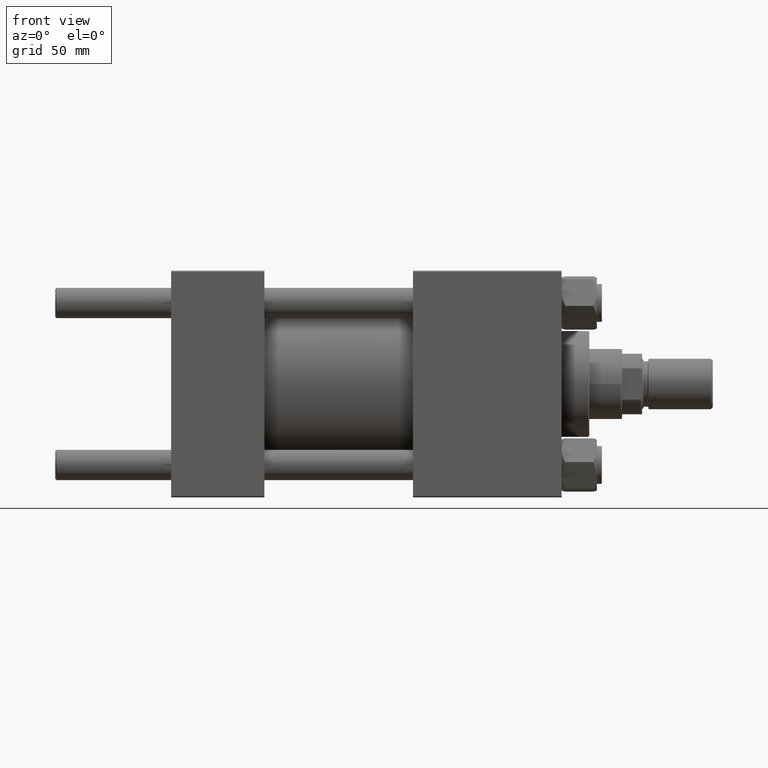
[diagram: clean part render]
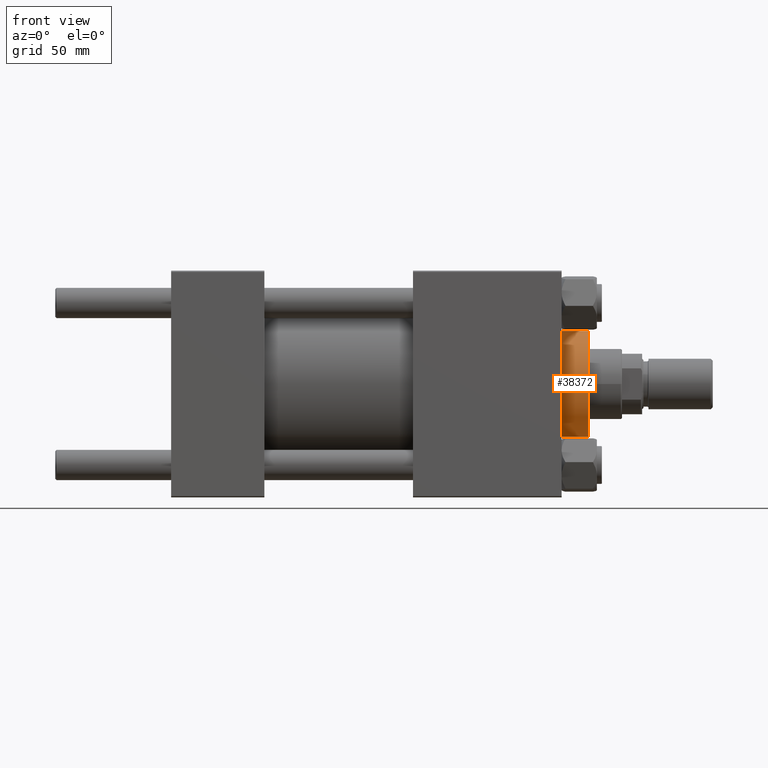
[diagram: same view with one face highlighted and labeled with its STEP entity id]
A machine part, front view. The second image highlights one B-rep face of the part: STEP entity #38372.
In plain terms, the highlighted cylindrical surface (partial cylindrical patch) has radius 21 mm, axis along (-1, -0, 0).
Its self-contained STEP definition (entity closure, byte-faithful):
#2176 = DIRECTION ( 'NONE',  ( -1.000000000000000000, 0.000000000000000000, 0.000000000000000000 ) ) ;
#4023 = DIRECTION ( 'NONE',  ( -0.000000000000000000, -0.000000000000000000, -1.000000000000000000 ) ) ;
#5874 = AXIS2_PLACEMENT_3D ( 'NONE', #23139, #11160, #26973 ) ;
#10098 = EDGE_CURVE ( 'NONE', #42494, #48182, #27518, .T. ) ;
#11160 = DIRECTION ( 'NONE',  ( 0.000000000000000000, 0.000000000000000000, -1.000000000000000000 ) ) ;
#11373 = ORIENTED_EDGE ( 'NONE', *, *, #13783, .T. ) ;
#13783 = EDGE_CURVE ( 'NONE', #38832, #42494, #27892, .T. ) ;
#13909 = CARTESIAN_POINT ( 'NONE',  ( 0.000000000000000000, 0.000000000000000000, 39.69999999999999574 ) ) ;
#15042 = CARTESIAN_POINT ( 'NONE',  ( 21.00000000000000000, 2.571758278209441661E-15, 39.19999999999999574 ) ) ;
#15396 = CARTESIAN_POINT ( 'NONE',  ( 21.00000000000000000, 2.571758278209441661E-15, 28.69999999999999929 ) ) ;
#18715 = EDGE_CURVE ( 'NONE', #48182, #44228, #43511, .T. ) ;
#20892 = CARTESIAN_POINT ( 'NONE',  ( -21.00000000000000000, 0.000000000000000000, 39.19999999999999574 ) ) ;
#21529 = AXIS2_PLACEMENT_3D ( 'NONE', #23133, #44621, #33165 ) ;
#22077 = CYLINDRICAL_SURFACE ( 'NONE', #35999, 21.00000000000000000 ) ;
#22203 = VECTOR ( 'NONE', #4023, 1000.000000000000000 ) ;
#23133 = CARTESIAN_POINT ( 'NONE',  ( 0.000000000000000000, 0.000000000000000000, 28.69999999999999929 ) ) ;
#23139 = CARTESIAN_POINT ( 'NONE',  ( 0.000000000000000000, 0.000000000000000000, 39.19999999999999574 ) ) ;
#23675 = CARTESIAN_POINT ( 'NONE',  ( -21.00000000000000000, 0.000000000000000000, 39.69999999999999574 ) ) ;
#24027 = EDGE_CURVE ( 'NONE', #38832, #44228, #34379, .T. ) ;
#25137 = EDGE_LOOP ( 'NONE', ( #43712, #11373, #38891, #43812 ) ) ;
#26973 = DIRECTION ( 'NONE',  ( 1.000000000000000000, 0.000000000000000000, 0.000000000000000000 ) ) ;
#27518 = LINE ( 'NONE', #23675, #22203 ) ;
#27892 = CIRCLE ( 'NONE', #5874, 21.00000000000000000 ) ;
#29074 = VECTOR ( 'NONE', #45574, 1000.000000000000000 ) ;
#33165 = DIRECTION ( 'NONE',  ( 1.000000000000000000, 0.000000000000000000, 0.000000000000000000 ) ) ;
#34379 = LINE ( 'NONE', #50408, #29074 ) ;
#35218 = CARTESIAN_POINT ( 'NONE',  ( -21.00000000000000000, 0.000000000000000000, 28.69999999999999929 ) ) ;
#35999 = AXIS2_PLACEMENT_3D ( 'NONE', #13909, #37126, #2176 ) ;
#37126 = DIRECTION ( 'NONE',  ( -0.000000000000000000, -0.000000000000000000, -1.000000000000000000 ) ) ;
#38372 = ADVANCED_FACE ( 'NONE', ( #45010 ), #22077, .T. ) ;
#38832 = VERTEX_POINT ( 'NONE', #15042 ) ;
#38891 = ORIENTED_EDGE ( 'NONE', *, *, #10098, .T. ) ;
#42494 = VERTEX_POINT ( 'NONE', #20892 ) ;
#43511 = CIRCLE ( 'NONE', #21529, 21.00000000000000000 ) ;
#43712 = ORIENTED_EDGE ( 'NONE', *, *, #24027, .F. ) ;
#43812 = ORIENTED_EDGE ( 'NONE', *, *, #18715, .T. ) ;
#44228 = VERTEX_POINT ( 'NONE', #15396 ) ;
#44621 = DIRECTION ( 'NONE',  ( 0.000000000000000000, 0.000000000000000000, 1.000000000000000000 ) ) ;
#45010 = FACE_OUTER_BOUND ( 'NONE', #25137, .T. ) ;
#45574 = DIRECTION ( 'NONE',  ( -0.000000000000000000, -0.000000000000000000, -1.000000000000000000 ) ) ;
#48182 = VERTEX_POINT ( 'NONE', #35218 ) ;
#50408 = CARTESIAN_POINT ( 'NONE',  ( 21.00000000000000000, 2.571758278209441661E-15, 39.69999999999999574 ) ) ;